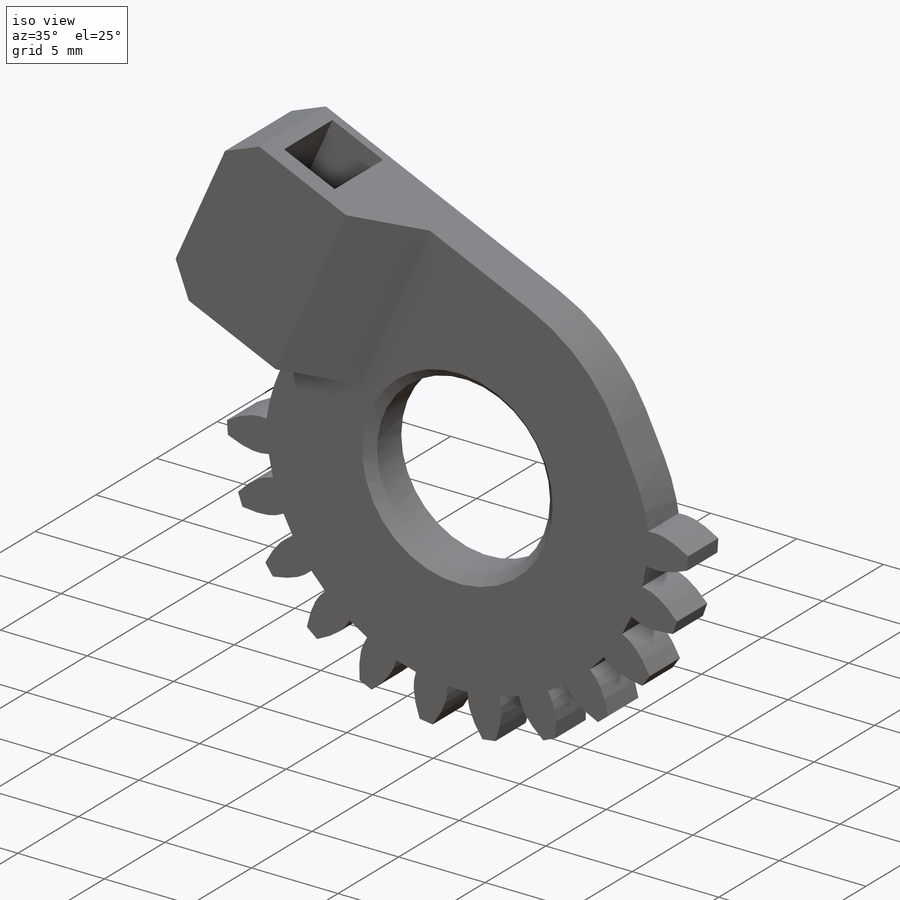
[diagram: iso view]
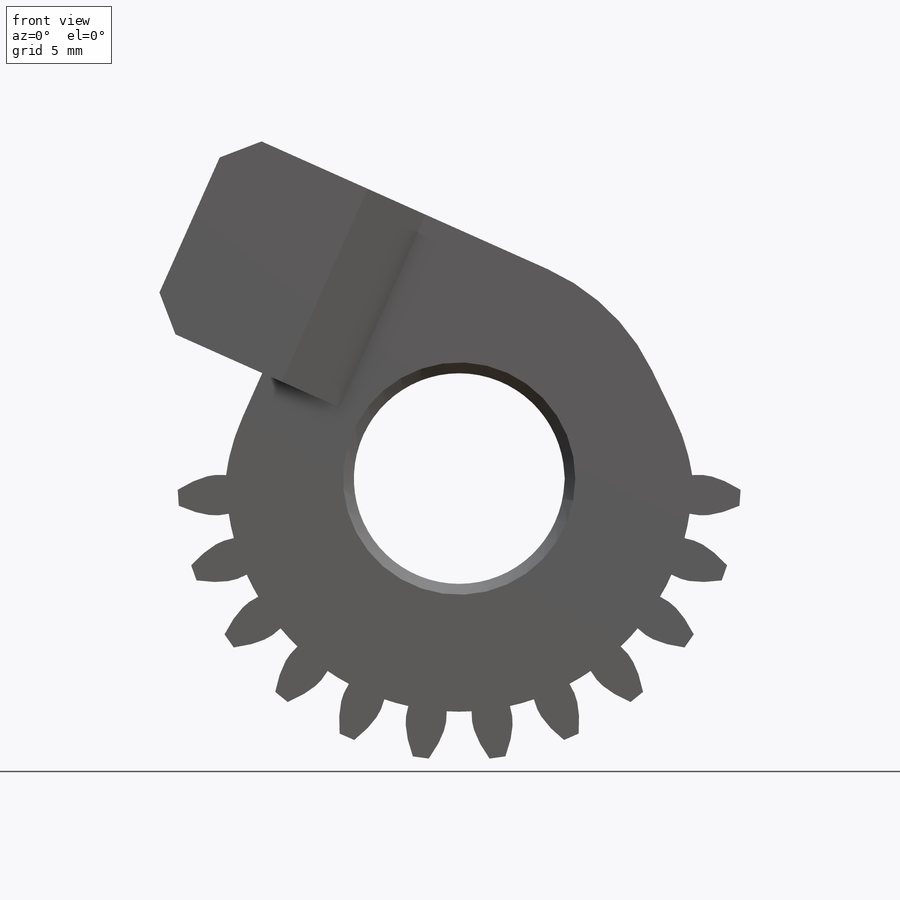
[diagram: front view]
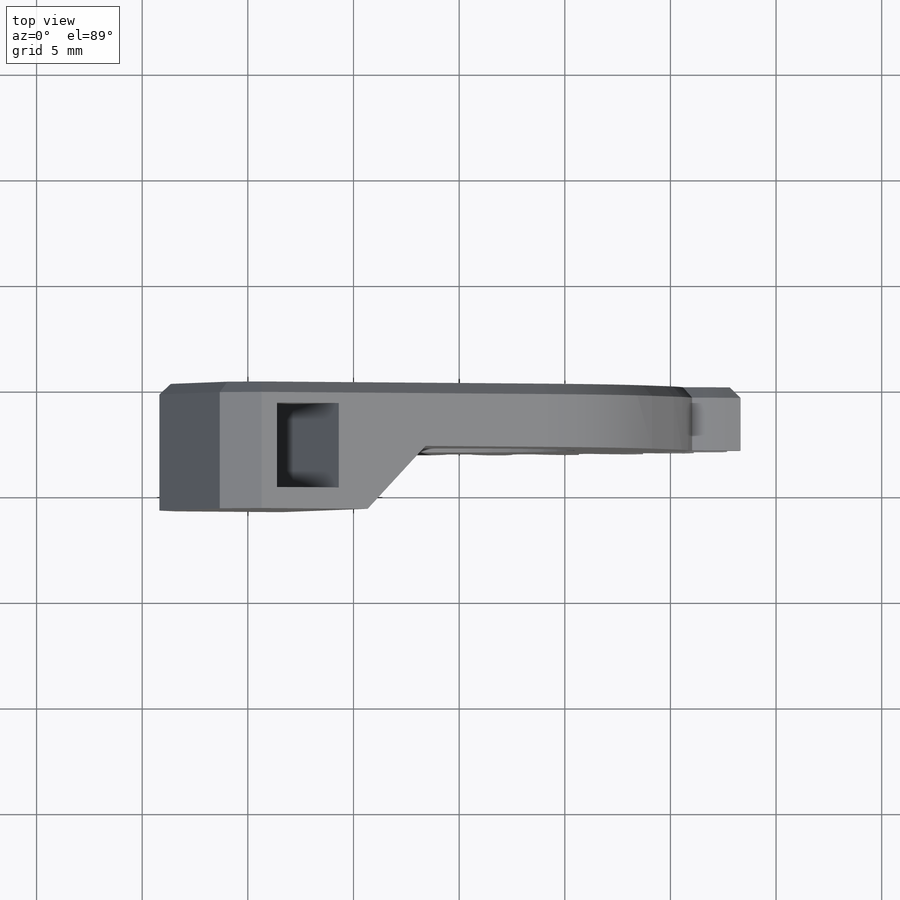
[diagram: top view]
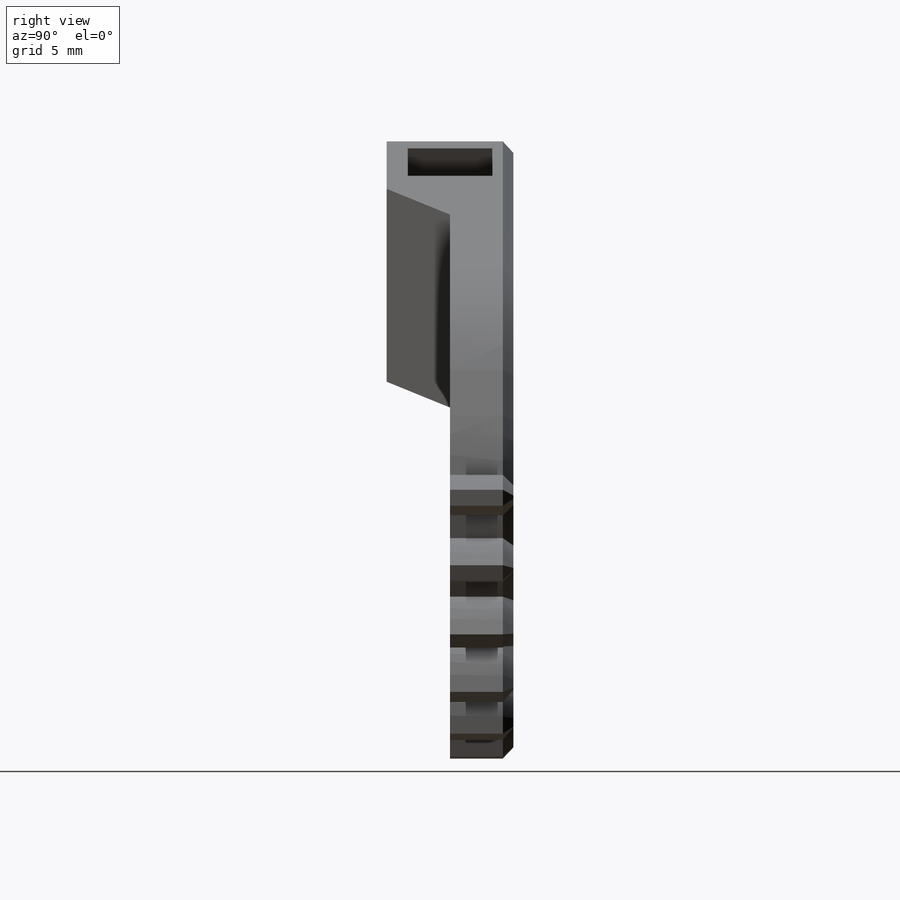
[diagram: right view]
SOLIDWORKS PART (.sldprt)
format: sldprt  version: not decoded by parser v0  size: 713,728 bytes
history: native  units: mm
features: sketch x6, cut_extrude x4, chamfer x3, extrude x2, material x1, fillet x1 (+12 scaffold rows collapsed)
feature tree (29):
  scaffold x12  (default folders/planes/origin — collapsed)
  material  "Lasercut ABS"
  sketch  "Model"
  extrude  "Boss-Extrude1"  Depth=6mm
  sketch  "Sketch3"  dims[c1.D1=~18.062019mm c2.D1=~83.027871deg c3.D1=~18.062019mm c4.D1=~83.027871deg c5.D1=~18.062019mm c6.D1=~83.027871deg c7.D1=15.0mm]
  cut_extrude  "Cut-Extrude2"  [1 undecoded]
  sketch  "Sketch4"  dims[c1.D1=10.0mm c1.D2=22.4mm c1.D3=6.0mm c1.D4=4.0mm c1.D5=4.0mm c1.D6=2.0mm c1.D7=3.0mm c1.D8=2.0mm c1.D9=4.0mm c1.D10=5.5mm c1.D11=11.0mm c1.D12=4.0mm c1.D13=2.5mm c1.D14=20.0mm c2.D5=10.0mm]
  extrude  "Boss-Extrude2"  [1 undecoded]
  sketch  "Sketch5"  dims[D1=10.0mm]
  cut_extrude  "Cut-Extrude3"  [1 undecoded]
  sketch  "Sketch7"  dims[D1=30.0mm D2=10.0mm]
  cut_extrude  "Cut-Extrude4"  Depth=3mm
  sketch  "Sketch8"  dims[D1=1.0mm D2=1.0mm D3=3.2mm D4=0.5mm]
  cut_extrude  "Cut-Extrude5"  [1 undecoded]
  chamfer  "Chamfer3"  Distance=1.5mm Angle=45deg
  fillet  "Fillet1"  Radius=10mm
  chamfer  "Chamfer4"  Distance=0.5mm Angle=45deg
  chamfer  "Chamfer5"  Distance=3mm Angle=45deg
decode coverage: 11 of 16 modeling features carry decoded parameters
note: ~ marks probable driven/reference dimensions
note: 4 parameter values undecoded
summary: no parameter record found for 4 features
note: suppression state not decoded; provenance and decode notes live in map.json
